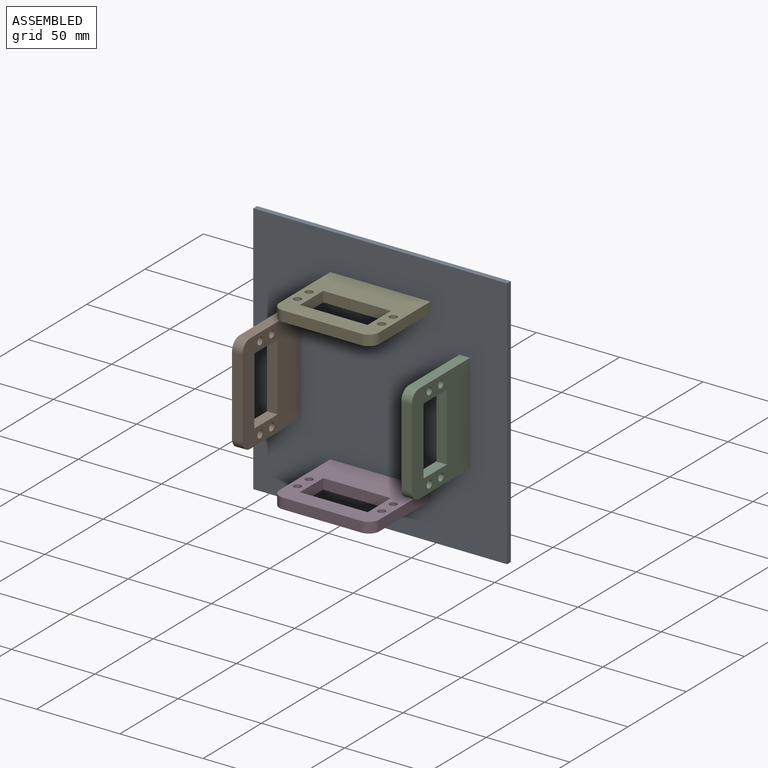
[diagram: assembled view]
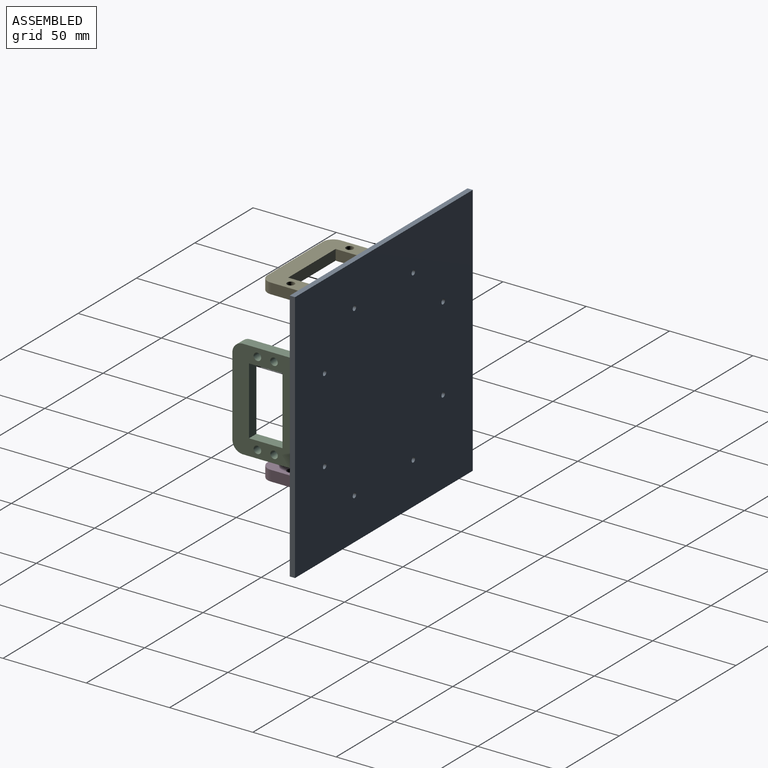
[diagram: assembled view, second angle]
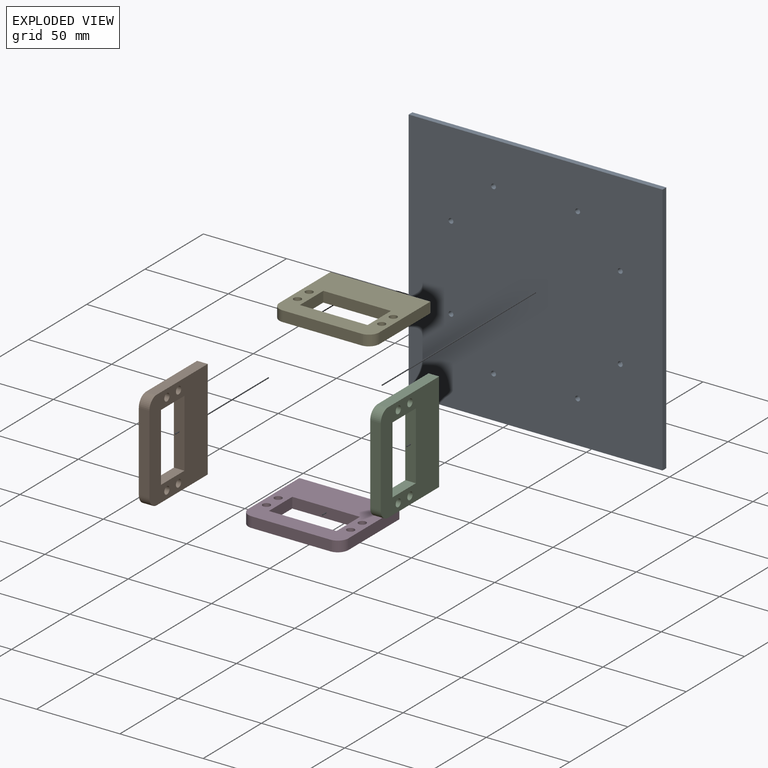
[diagram: exploded view]
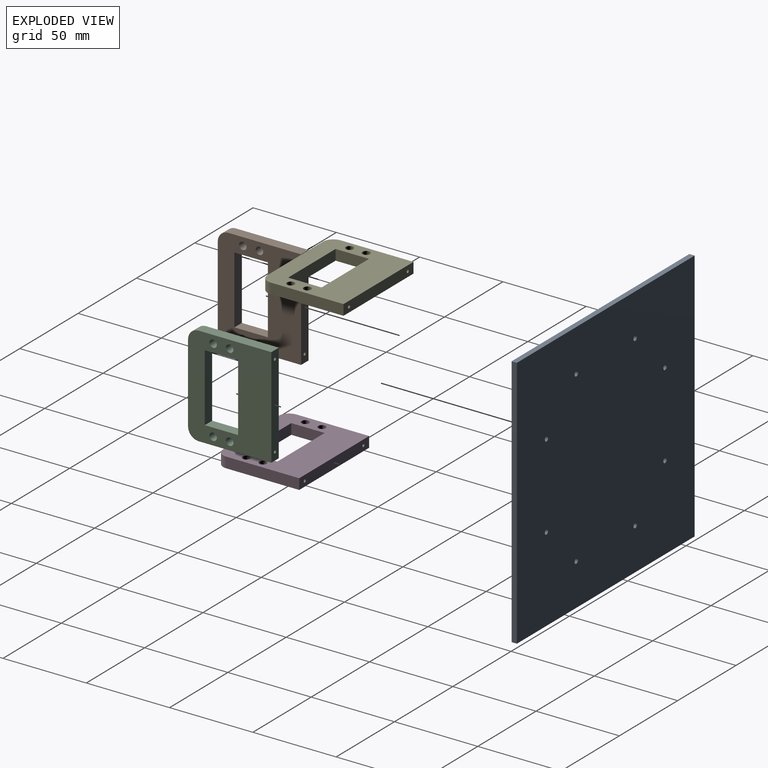
[diagram: exploded view, second angle]
ASSEMBLY  parts=5 mates=4
PART A: 14 faces, bbox 152.4x3.2x152.4 mm
  f0: plane 152.4x3.18mm, normal (0,0,-1), area 483.9mm2, adj f1,f3,f4,f5
  f1: plane 152.4x3.18mm, normal (1,0,0), area 483.9mm2, adj f0,f2,f4,f5
  f2: plane 152.4x3.18mm, normal (0,0,1), area 483.9mm2, adj f1,f3,f4,f5
  f3: plane 152.4x3.18mm, normal (-1,0,0), area 483.9mm2, adj f0,f2,f4,f5
  f4: plane 152.4x152.4mm, normal (0,-1,0), area 23172.2mm2, adj f0,f1,f2,f3,f6,f7,f8,f9
  f5: plane 152.4x152.4mm, normal (0,1,0), area 23172.2mm2, adj f0,f1,f2,f3,f6,f7,f8,f9
  f6: cylinder r=1.46mm len=3.18mm, axis (0,-1,0), area 29.1mm2, adj f4,f5
  f7: cylinder r=1.46mm len=3.18mm, axis (0,-1,0), area 29.1mm2, adj f4,f5
  f8: cylinder r=1.46mm len=3.18mm, axis (0,-1,0), area 29.1mm2, adj f4,f5
  f9: cylinder r=1.46mm len=3.18mm, axis (0,-1,0), area 29.1mm2, adj f4,f5
  f10: cylinder r=1.46mm len=3.18mm, axis (0,-1,0), area 29.1mm2, adj f4,f5
  f11: cylinder r=1.46mm len=3.18mm, axis (0,-1,0), area 29.1mm2, adj f4,f5
  f12: cylinder r=1.46mm len=3.18mm, axis (0,-1,0), area 29.1mm2, adj f4,f5
  f13: cylinder r=1.46mm len=3.18mm, axis (0,-1,0), area 29.1mm2, adj f4,f5
PART B: 20 faces, bbox 60x6.4x50 mm
  f0: plane 60x6.35mm, normal (0,0,-1), area 375.1mm2, adj f4,f9,f14,f15,f16,f18
  f1: plane 20.07x6.35mm, normal (-1,0,0), area 127.4mm2, adj f2,f8,f14,f15
  f2: plane 40.64x6.35mm, normal (0,0,1), area 258.1mm2, adj f1,f3,f14,f15
  f3: plane 20.07x6.35mm, normal (1,0,0), area 127.4mm2, adj f2,f8,f14,f15
  f4: plane 43.65x6.35mm, normal (1,0,0), area 277.2mm2, adj f0,f5,f14,f15
  f5: cylinder r=6.35mm len=6.35mm, axis (0,1,0), area 63.3mm2, adj f4,f6,f14,f15
  f6: plane 47.3x6.35mm, normal (0,0,1), area 300.4mm2, adj f5,f7,f14,f15
  f7: cylinder r=6.35mm len=6.35mm, axis (0,1,0), area 63.3mm2, adj f6,f9,f14,f15
  f8: plane 40.64x6.35mm, normal (0,0,-1), area 258.1mm2, adj f1,f3,f14,f15
  f9: plane 43.65x6.35mm, normal (-1,0,0), area 277.2mm2, adj f0,f7,f14,f15
  f10: cylinder r=2.25mm len=6.35mm, axis (0,1,0), area 89.8mm2, adj f14,f15
  f11: cylinder r=2.25mm len=6.35mm, axis (0,1,0), area 89.8mm2, adj f14,f15
  f12: cylinder r=2.25mm len=6.35mm, axis (0,1,0), area 89.8mm2, adj f14,f15
  f13: cylinder r=2.25mm len=6.35mm, axis (0,1,0), area 89.8mm2, adj f14,f15
  f14: plane 60x50mm, normal (0,-1,0), area 2103.6mm2, adj f0,f1,f2,f3,f4,f5,f6,f7
  f15: plane 60x50mm, normal (0,1,0), area 2103.6mm2, adj f0,f1,f2,f3,f4,f5,f6,f7
  f16: cylinder r=0.97mm len=5.08mm, axis (0,0,-1), area 30.8mm2, adj f0,f17
  f17: plane 1.93x1.93mm, normal (0,0,-1), area 2.9mm2, adj f16
  f18: cylinder r=0.97mm len=5.08mm, axis (0,0,-1), area 30.8mm2, adj f0,f19
  f19: plane 1.93x1.93mm, normal (0,0,-1), area 2.9mm2, adj f18
PART C: same geometry as B
PART D: same geometry as B
PART E: same geometry as B
PLACE A t=(-119.75,18.18,-9.58)mm
PLACE B rot(axis=(0.58,-0.58,0.58),120deg) t=(-33.21,-14.96,-2.33)mm
PLACE C rot(axis=(0.58,0.58,-0.58),120deg) t=(74.74,-14.96,-2.33)mm
PLACE D rot(axis=(1,0,0),90deg) t=(20.86,-14.96,-49.86)mm
PLACE E rot(axis=(0,-0.71,0.71),180deg) t=(20.86,-14.96,45.39)mm
MATE fastened B.f18 <-> A.f10  axis (0,1,0) through (-30.03,15.01,-27.49)mm
MATE fastened D.f16 <-> A.f8  axis (0,1,0) through (46.02,15.01,-53.04)mm
MATE fastened C.f16 <-> A.f7  axis (0,1,0) through (71.57,15.01,-27.49)mm
MATE fastened E.f18 <-> A.f13  axis (0,1,0) through (46.02,15.01,48.56)mm
